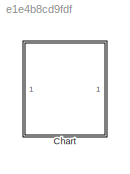
MODEL slx_e1e4b8cd9fdf
KIND model
CONFIG AbsTol = auto
CONFIG EnableMultiTasking = off
CONFIG FixedStep = 0.1
CONFIG MaxStep = auto
CONFIG MinStep = auto
CONFIG RelTol = 1e-3
CONFIG SampleTimeConstraint = Unconstrained
CONFIG SolverName = FixedStepAuto
CONFIG StartTime = 0.0
CONFIG StopTime = 10.0
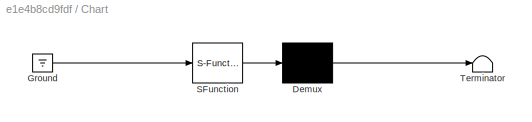
BLOCK [SubSystem] Chart
  ErrorFcn = Stateflow.Translate.translate
  PermitHierarchicalResolution = ExplicitOnly
  Ports = []
  RequestExecContextInheritance = off
  SFBlockType = Chart
  TreatAsAtomicUnit = on
BLOCK [Demux] Chart/ Demux 
  Outputs = 1
  Ports = [1, 1]
BLOCK [Ground] Chart/ Ground 
BLOCK [S-Function] Chart/ SFunction 
  EnableBusSupport = on
  FunctionName = sf_sfun
  PortCounts = [1 1]
  Ports = [1, 1]
  SFcnIsStateOwnerBlock = off
  SFunctionDeploymentMode = off
  Tag = Stateflow S-Function 3
BLOCK [Terminator] Chart/ Terminator 
CHART Chart states=4 transitions=3
  STATE_LABEL "ddd\nen:\nres = 0;\ndu:\nsfdbg('ddd.du')\non every(5, tick):\nres= 0;\nsend(E, ddd1)\nif (in(ddd1.b))\n    sfdbg('tr success  in')\nelse\n    sfdbg('tr.failed in')\nend\nif (res ==1)\n    sfdbg('tr success')\nelse\n    sfdbg('tr.failed')\nend\n"
  STATE_LABEL 'ddd1'
  STATE_LABEL "a\n\non E:\nsfdbg('a tran failed')\n"
  STATE_LABEL "b\nen:\nsfdbg('a trans succed')"
  STATE_LABEL 'E[getSimulationTime>1.2]/{res=1;}'
  STATE_LABEL 'E/{res=1;}'
  STATE_LABEL "a\n\non E:\nsfdbg('a tran failed')\n"
  STATE_LABEL "b\nen:\nsfdbg('a trans succed')"
CHART  states=0 transitions=0
